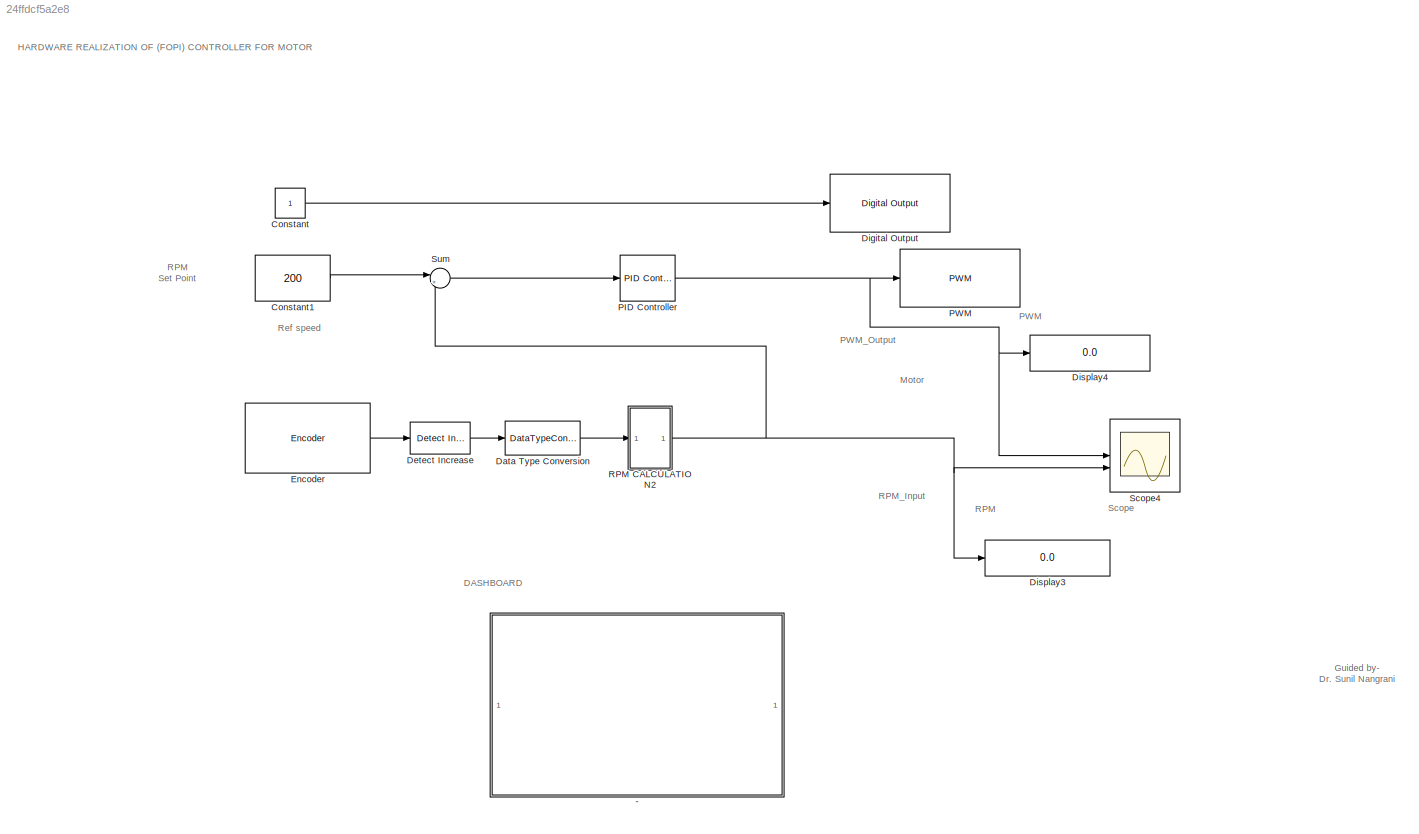
MODEL slx_24ffdcf5a2e8
KIND model
CONFIG AbsTol = auto
CONFIG EnableMultiTasking = on
CONFIG FixedStep = auto
CONFIG MaxStep = auto
CONFIG MinStep = auto
CONFIG RelTol = 1e-3
CONFIG SampleTimeConstraint = Unconstrained
CONFIG SolverName = FixedStepAuto
CONFIG StartTime = 0.0
CONFIG StopTime = inf
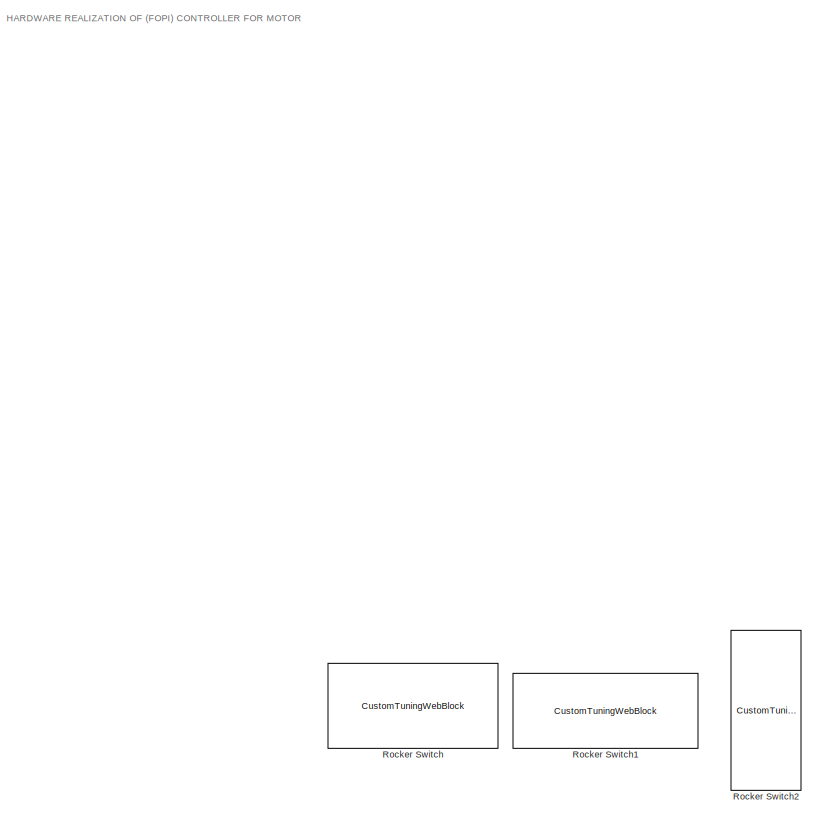
[diagram: - - part 1/4, top left region]
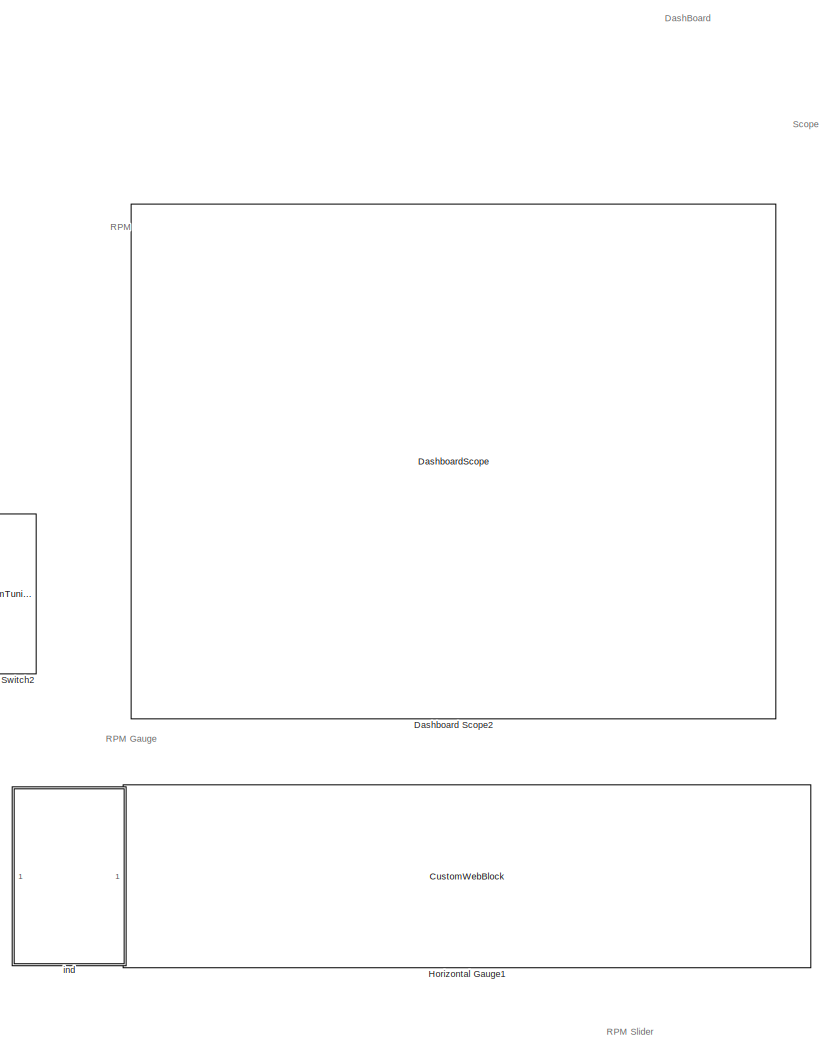
[diagram: - - part 2/4, central region]
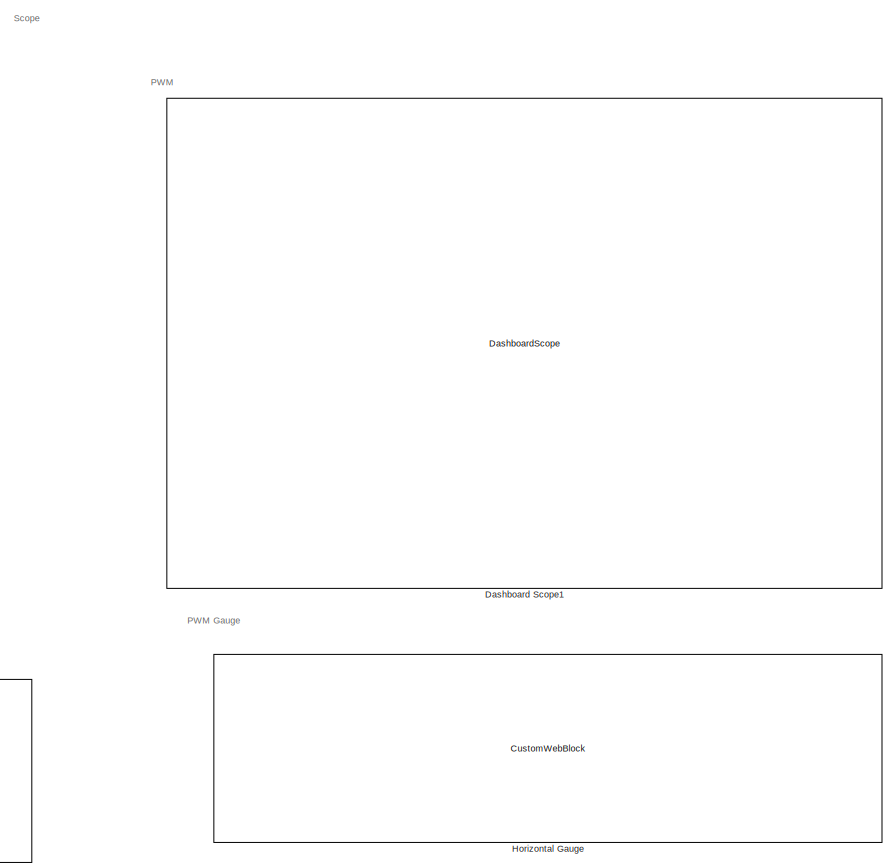
[diagram: - - part 3/4, middle right region]
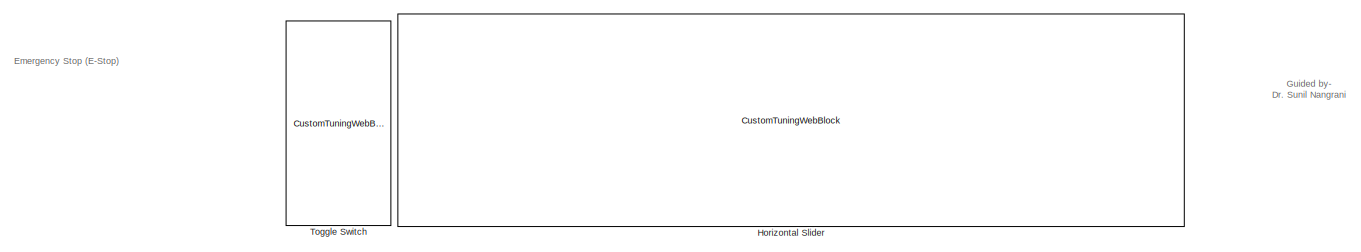
[diagram: - - part 4/4, bottom right region]
BLOCK [SubSystem] -
BLOCK [DashboardScope] -/Dashboard Scope1
BLOCK [DashboardScope] -/Dashboard Scope2
BLOCK [CustomWebBlock] -/Horizontal Gauge
  Configuration = {"components":[{"name":"LinearScaleComponent","settings":{"bounds":{"max":1000,"min":0,"tickInterval":"auto"},"internalTickHeightScaleFactor":0.5,"labelColor":[255,255,200],"labelFont":{"font":"Arial","fontSize":12},"labelOffset":0.05,"labelTransparency":1,"needleImage":{"size":[21,75],"src":"data:image\/svg+xml;base64,PHN2ZyB4bWxucz0iaHR0cDovL3d3dy53My5vcmcvMjAwMC9zdmciIHhtbG5zOnhsaW5rPSJodHRwOi8...<+4612ch>
  LabelPosition = Hide
  ShowInitialText = on
BLOCK [CustomWebBlock] -/Horizontal Gauge1
  Configuration = {"components":[{"name":"LinearScaleComponent","settings":{"bounds":{"max":1000,"min":0,"tickInterval":"auto"},"internalTickHeightScaleFactor":0.5,"labelColor":[255,255,200],"labelFont":{"font":"Arial","fontSize":12},"labelOffset":0.05,"labelTransparency":1,"needleImage":{"size":[21,75],"src":"data:image\/svg+xml;base64,PHN2ZyB4bWxucz0iaHR0cDovL3d3dy53My5vcmcvMjAwMC9zdmciIHhtbG5zOnhsaW5rPSJodHRwOi8...<+4612ch>
  LabelPosition = Hide
  ShowInitialText = on
BLOCK [CustomTuningWebBlock] -/Horizontal Slider
  Configuration = {"components":[{"name":"LinearScaleComponent","settings":{"bounds":{"max":1000,"min":0,"tickInterval":"auto"},"internalTickHeightScaleFactor":0.5,"labelColor":[255,255,200],"labelFont":{"font":"Arial","fontSize":12},"labelOffset":0.05,"labelTransparency":1,"needleImage":{"size":[596,842],"src":"data:image\/svg+xml;base64,PD94bWwgdmVyc2lvbj0iMS4wIiBlbmNvZGluZz0idXRmLTgiPz4NCjwhLS0gR2VuZXJhdG9yOiBBZ...<+5491ch>
  LabelPosition = Hide
  ShowInitialText = on
BLOCK [CustomTuningWebBlock] -/Rocker Switch
  Configuration = {"components":[{"name":"CustomSwitchStateComponent","settings":{"position":[0,0,1,1],"states":[{"HitRegion":{"position":[0,0,0.5,1]},"Image":{"position":[0.13,0,1,0.75],"size":[1,0.75],"src":"data:image\/svg+xml;base64,PHN2ZyB4bWxucz0iaHR0cDovL3d3dy53My5vcmcvMjAwMC9zdmciIHhtbG5zOnhsaW5rPSJodHRwOi8vd3d3LnczLm9yZy8xOTk5L3hsaW5rIiB2aWV3Qm94PSIwIDAgNzUgMjQuOCI+PGRlZnM+PHN0eWxlPi5jbHMtMXtmaWxsOnVybCgjc...<+9001ch>
  LabelPosition = Hide
  ShowInitialText = on
BLOCK [CustomTuningWebBlock] -/Rocker Switch1
  Configuration = {"components":[{"name":"CustomSwitchStateComponent","settings":{"position":[0,0,1,1],"states":[{"HitRegion":{"position":[0,0.5,0.5,1]},"Image":{"position":[0.12,0,1,0.75],"size":[1,0.75],"src":"data:image\/svg+xml;base64,PHN2ZyB4bWxucz0iaHR0cDovL3d3dy53My5vcmcvMjAwMC9zdmciIHhtbG5zOnhsaW5rPSJodHRwOi8vd3d3LnczLm9yZy8xOTk5L3hsaW5rIiB2aWV3Qm94PSIwIDAgNzUgMjQuOCI+PGRlZnM+PHN0eWxlPi5jbHMtMXtmaWxsOnVybCg...<+9001ch>
  LabelPosition = Hide
  NameLocation = top
  ShowInitialText = on
BLOCK [CustomTuningWebBlock] -/Rocker Switch2
  Configuration = {"components":[{"name":"CustomSwitchStateComponent","settings":{"position":[0,0,1,1],"states":[{"HitRegion":{"position":[0,0,1,0.5]},"Image":{"position":[0,0.12,0.75,1],"size":[0.75,1],"src":"data:image\/svg+xml;base64,PHN2ZyB4bWxucz0iaHR0cDovL3d3dy53My5vcmcvMjAwMC9zdmciIHhtbG5zOnhsaW5rPSJodHRwOi8vd3d3LnczLm9yZy8xOTk5L3hsaW5rIiB2aWV3Qm94PSIwIDAgNzUgMjQuOCI+PGRlZnM+PHN0eWxlPi5jbHMtMXtmaWxsOnVybCgjc...<+8986ch>
  LabelPosition = Hide
  NameLocation = left
  ShowInitialText = on
BLOCK [CustomTuningWebBlock] -/Toggle Switch
  Configuration = {"components":[{"name":"CustomSwitchStateComponent","settings":{"position":[0,0,1,1],"showAllLabels":1,"states":[{"HitRegion":{"position":[0.5,0,1,0.5]},"Image":{"position":[0,0.24928571428571428,0.5014285714285714,1],"size":[0.5014285714285714,1],"src":"data:image\/svg+xml;base64,PHN2ZyB4bWxucz0iaHR0cDovL3d3dy53My5vcmcvMjAwMC9zdmciIHhtbG5zOnhsaW5rPSJodHRwOi8vd3d3LnczLm9yZy8xOTk5L3hsaW5rIiB2aWV3Qm...<+9098ch>
  LabelPosition = Hide
  ShowInitialText = on
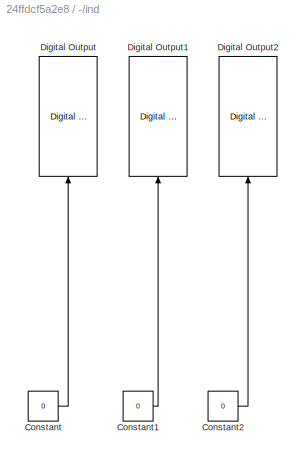
BLOCK [SubSystem] -/ind
BLOCK [Constant] -/ind/Constant
  SampleTime = 0.001
  Value = 0
BLOCK [Constant] -/ind/Constant1
  SampleTime = 0.001
  Value = 0
BLOCK [Constant] -/ind/Constant2
  SampleTime = 0.001
  Value = 0
BLOCK [Reference] -/ind/Digital Output  REF=arduinolib/Digital Output
  NameLocation = right
  SourceBlock = arduinolib/Digital Output
  SourceType = Arduino Digital Output
BLOCK [Reference] -/ind/Digital Output1  REF=arduinolib/Digital Output
  NameLocation = right
  SourceBlock = arduinolib/Digital Output
  SourceType = Arduino Digital Output
BLOCK [Reference] -/ind/Digital Output2  REF=arduinolib/Digital Output
  NameLocation = right
  SourceBlock = arduinolib/Digital Output
  SourceType = Arduino Digital Output
BLOCK [Constant] Constant
  SampleTime = 0.001
BLOCK [Constant] Constant1
  SampleTime = 0.001
  Value = 200
BLOCK [DataTypeConversion] Data Type Conversion
  RndMeth = Floor
  SaturateOnIntegerOverflow = off
BLOCK [Reference] Detect Increase  REF=simulink/Logic and Bit
Operations/Detect
Increase
  SourceBlock = simulink/Logic and Bit\nOperations/Detect\nIncrease
  SourceType = Detect Increase
BLOCK [Reference] Digital Output  REF=arduinolib/Digital Output
  SourceBlock = arduinolib/Digital Output
  SourceType = Arduino Digital Output
BLOCK [Display] Display3
  Decimation = 1
BLOCK [Display] Display4
  Decimation = 1
BLOCK [Reference] Encoder  REF=arduinosensorlib/Encoder
  SourceBlock = arduinosensorlib/Encoder
  SourceType = Arduino Rotary Encoder
BLOCK [Reference] PID Controller  REF=slpidlib/PID Controller
  LibrarySourceBlock = simulink/Continuous/PID Controller
  SourceBlock = slpidlib/PID Controller
  SourceType = PID 1dof
BLOCK [Reference] PWM  REF=arduinolib/PWM
  SourceBlock = arduinolib/PWM
  SourceType = Arduino PWM
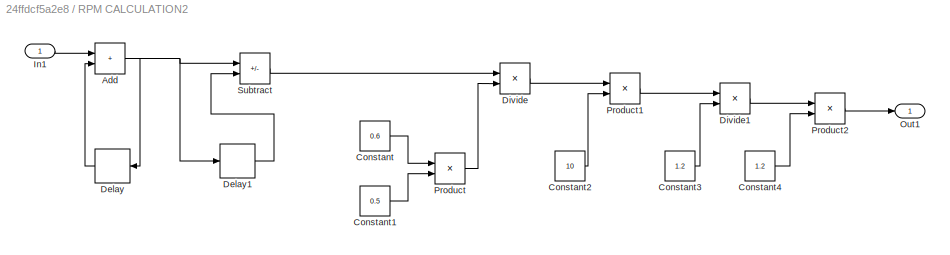
BLOCK [SubSystem] RPM CALCULATION2
BLOCK [Sum] RPM CALCULATION2/Add
  IconShape = rectangular
BLOCK [Constant] RPM CALCULATION2/Constant
  SampleTime = 0.001
  Value = 0.6
BLOCK [Constant] RPM CALCULATION2/Constant1
  SampleTime = 0.001
  Value = 0.5
BLOCK [Constant] RPM CALCULATION2/Constant2
  SampleTime = 0.001
  Value = 10
BLOCK [Constant] RPM CALCULATION2/Constant3
  SampleTime = 0.001
  Value = 1.2
BLOCK [Constant] RPM CALCULATION2/Constant4
  SampleTime = 0.001
  Value = 1.2
BLOCK [Delay] RPM CALCULATION2/Delay
  DelayLength = 1
  InitialCondition = 0
  InputPortMap = u0
BLOCK [Delay] RPM CALCULATION2/Delay1
  DelayLength = 100
  InitialCondition = 0
  InputPortMap = u0
BLOCK [Product] RPM CALCULATION2/Divide
  Inputs = */
BLOCK [Product] RPM CALCULATION2/Divide1
  Inputs = */
BLOCK [Inport] RPM CALCULATION2/In1
BLOCK [Outport] RPM CALCULATION2/Out1
BLOCK [Product] RPM CALCULATION2/Product
BLOCK [Product] RPM CALCULATION2/Product1
BLOCK [Product] RPM CALCULATION2/Product2
BLOCK [Sum] RPM CALCULATION2/Subtract
  IconShape = rectangular
  Inputs = +-
BLOCK [Scope] Scope4
  Floating = off
  NumInputPorts = 2
  ScopeSpecificationString = Simulink.scopes.TimeScopeBlockCfg('CurrentConfiguration', extmgr.ConfigurationSet(extmgr.Configuration('Core','General UI',true,'FigureColor',[1 1 1]),extmgr.Configuration('Core','Source UI',true),extmgr.Configuration('Sources','WiredSimulink',true,'DataLogging',true,'DataLoggingSaveFormat','StructureWithTime'),extmgr.Configuration('Visuals','Time Domain',true,'SerializedDisplays',{struct('MinYLim...<+2410ch>
BLOCK [Sum] Sum
  Inputs = |+-
ANNOTATION (root): Motor
ANNOTATION (root): HARDWARE REALIZATION OF (FOPI) CONTROLLER FOR MOTOR
ANNOTATION (root): DASHBOARD
ANNOTATION (root): Guided by- Dr. Sunil Nangrani
ANNOTATION (root): RPM Set Point
ANNOTATION (root): PWM
ANNOTATION (root): RPM
ANNOTATION (root): Scope
ANNOTATION (root): RPM_Input
ANNOTATION (root): PWM_Output
ANNOTATION (root): Ref speed
ANNOTATION -: DashBoard
ANNOTATION -: HARDWARE REALIZATION OF (FOPI) CONTROLLER FOR MOTOR
ANNOTATION -: Emergency Stop (E-Stop)
ANNOTATION -: Guided by- Dr. Sunil Nangrani
ANNOTATION -: PWM Gauge
ANNOTATION -: RPM Gauge
ANNOTATION -: RPM Slider
ANNOTATION -: Scope
ANNOTATION -: PWM
ANNOTATION -: RPM
LINE -/ind/Constant1:1 -> -/ind/Digital Output1:1
LINE -/ind/Constant2:1 -> -/ind/Digital Output2:1
LINE -/ind/Constant:1 -> -/ind/Digital Output:1
LINE Constant1:1 -> Sum:1
LINE Constant:1 -> Digital Output:1
LINE Data Type Conversion:1 -> RPM CALCULATION2:1
LINE Detect Increase:1 -> Data Type Conversion:1
LINE Encoder:1 -> Detect Increase:1
NET PID Controller:1 -> Display4:1, PWM:1, Scope4:1
NET RPM CALCULATION2/Add:1 -> RPM CALCULATION2/Delay1:1, RPM CALCULATION2/Delay:1, RPM CALCULATION2/Subtract:1
LINE RPM CALCULATION2/Constant1:1 -> RPM CALCULATION2/Product:2
LINE RPM CALCULATION2/Constant2:1 -> RPM CALCULATION2/Product1:2
LINE RPM CALCULATION2/Constant3:1 -> RPM CALCULATION2/Divide1:2
LINE RPM CALCULATION2/Constant4:1 -> RPM CALCULATION2/Product2:2
LINE RPM CALCULATION2/Constant:1 -> RPM CALCULATION2/Product:1
LINE RPM CALCULATION2/Delay1:1 -> RPM CALCULATION2/Subtract:2
LINE RPM CALCULATION2/Delay:1 -> RPM CALCULATION2/Add:2
LINE RPM CALCULATION2/Divide1:1 -> RPM CALCULATION2/Product2:1
LINE RPM CALCULATION2/Divide:1 -> RPM CALCULATION2/Product1:1
LINE RPM CALCULATION2/In1:1 -> RPM CALCULATION2/Add:1
LINE RPM CALCULATION2/Product1:1 -> RPM CALCULATION2/Divide1:1
LINE RPM CALCULATION2/Product2:1 -> RPM CALCULATION2/Out1:1
LINE RPM CALCULATION2/Product:1 -> RPM CALCULATION2/Divide:2
LINE RPM CALCULATION2/Subtract:1 -> RPM CALCULATION2/Divide:1
NET RPM CALCULATION2:1 -> Display3:1, Scope4:2, Sum:2
LINE Sum:1 -> PID Controller:1
note: NET lines group one-source signal fan-out (src -> all destinations, sorted); 1:1 wires keep LINE
